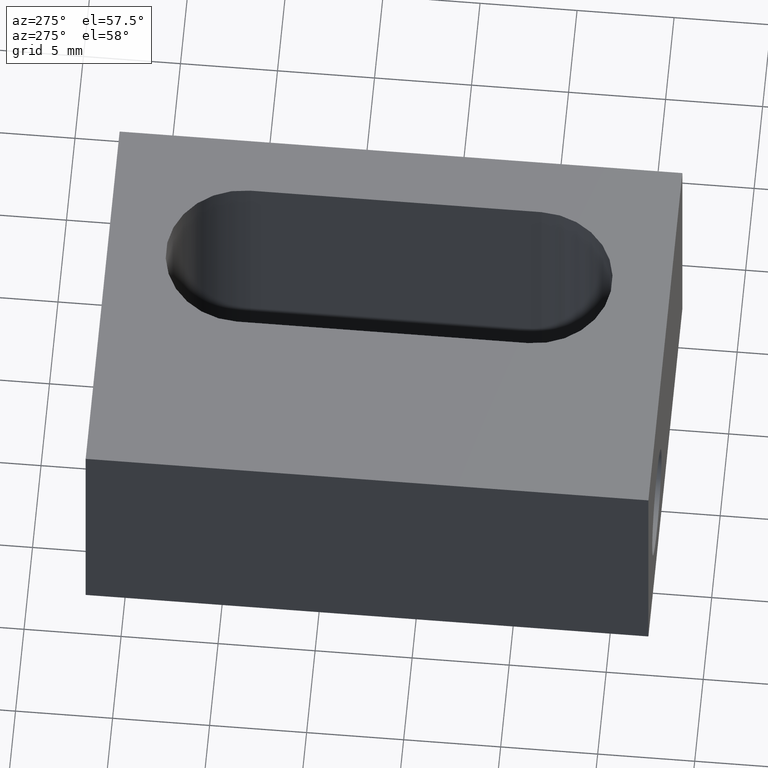
[diagram: clean part render]
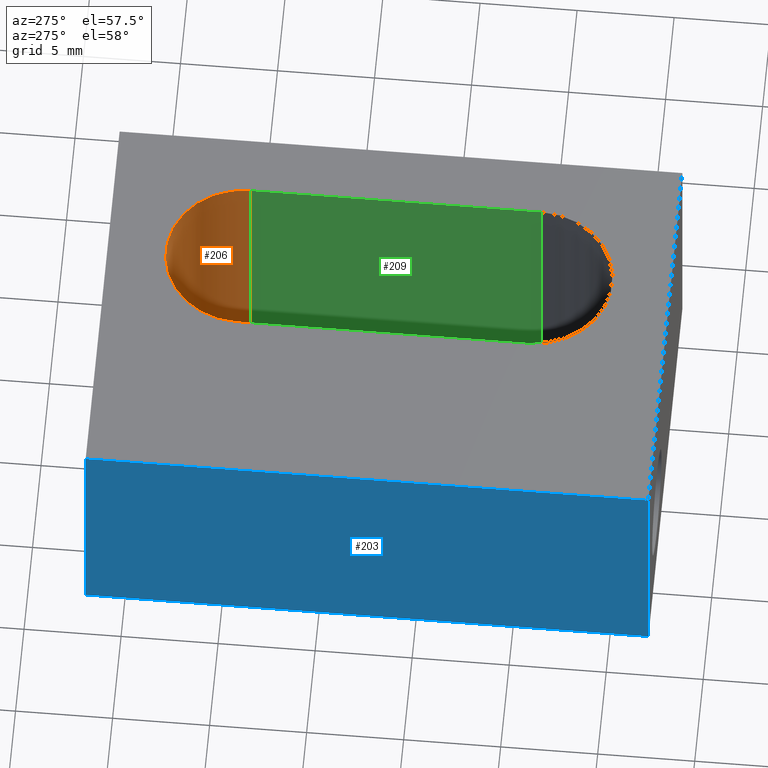
[diagram: same view with three faces highlighted in distinct colors, each labeled with its STEP entity id]
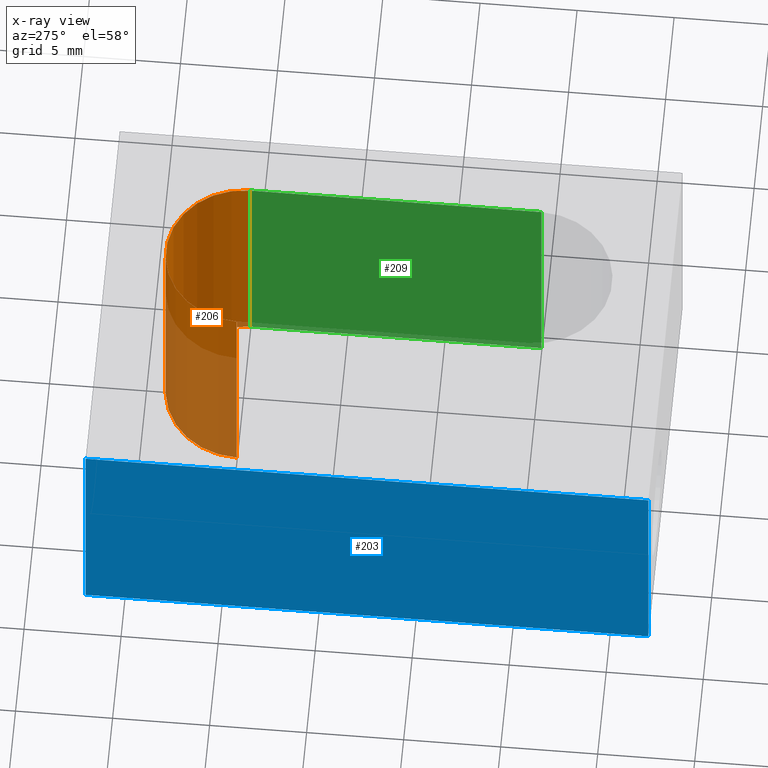
[diagram: x-ray of the same camera — body ghosted, the three highlighted faces saturated]
A machine part, auxiliary view with three faces highlighted in distinct colors.
The next image is the same camera in x-ray (body ghosted, the three faces saturated) — at least one of them is partly hidden behind the body in this view.
Their STEP definitions:

[orange] entity #206 — the highlighted cylindrical surface (partial cylindrical patch) has radius 4 mm, axis along (0, 0, 1).
#15=CYLINDRICAL_SURFACE('',#225,3.999999999984);
#25=CIRCLE('',#220,3.999999999984);
#28=CIRCLE('',#224,3.999999999984);
#35=FACE_OUTER_BOUND('',#50,.T.);
#50=EDGE_LOOP('',(#174,#175,#176,#177));
#72=LINE('',#334,#92);
#73=LINE('',#335,#93);
#92=VECTOR('',#274,13.);
#93=VECTOR('',#275,13.);
#106=VERTEX_POINT('',#316);
#107=VERTEX_POINT('',#317);
#110=VERTEX_POINT('',#325);
#113=VERTEX_POINT('',#330);
#128=EDGE_CURVE('',#106,#107,#25,.T.);
#135=EDGE_CURVE('',#113,#110,#28,.T.);
#136=EDGE_CURVE('',#107,#110,#72,.T.);
#137=EDGE_CURVE('',#106,#113,#73,.T.);
#174=ORIENTED_EDGE('',*,*,#136,.T.);
#175=ORIENTED_EDGE('',*,*,#135,.F.);
#176=ORIENTED_EDGE('',*,*,#137,.F.);
#177=ORIENTED_EDGE('',*,*,#128,.T.);
#206=ADVANCED_FACE('',(#35),#15,.F.);
#220=AXIS2_PLACEMENT_3D('',#318,#258,#259);
#224=AXIS2_PLACEMENT_3D('',#332,#270,#271);
#225=AXIS2_PLACEMENT_3D('',#333,#272,#273);
#258=DIRECTION('center_axis',(0.,0.,1.));
#259=DIRECTION('ref_axis',(1.,0.,0.));
#270=DIRECTION('center_axis',(0.,0.,1.));
#271=DIRECTION('ref_axis',(1.,0.,0.));
#272=DIRECTION('center_axis',(0.,0.,1.));
#273=DIRECTION('ref_axis',(1.,0.,0.));
#274=DIRECTION('',(0.,0.,-1.));
#275=DIRECTION('',(0.,0.,-1.));
#316=CARTESIAN_POINT('',(3.99999999998409,14.99999999994,13.));
#317=CARTESIAN_POINT('',(-3.99999999998409,14.99999999994,13.));
#318=CARTESIAN_POINT('Origin',(0.,14.99999999994,13.));
#325=CARTESIAN_POINT('',(-3.99999999998409,14.99999999994,0.));
#330=CARTESIAN_POINT('',(3.99999999998409,14.99999999994,0.));
#332=CARTESIAN_POINT('Origin',(0.,14.99999999994,0.));
#333=CARTESIAN_POINT('Origin',(0.,14.99999999994,13.));
#334=CARTESIAN_POINT('',(-3.99999999998409,14.99999999994,13.));
#335=CARTESIAN_POINT('',(3.99999999998409,14.99999999994,13.));

[blue] entity #203 — the highlighted planar face has unit normal (1, 0, 0).
#32=FACE_OUTER_BOUND('',#45,.T.);
#45=EDGE_LOOP('',(#154,#155,#156,#157));
#56=LINE('',#290,#76);
#64=LINE('',#308,#84);
#66=LINE('',#313,#86);
#67=LINE('',#314,#87);
#76=VECTOR('',#234,13.);
#84=VECTOR('',#248,13.);
#86=VECTOR('',#254,28.999999999884);
#87=VECTOR('',#255,28.999999999884);
#96=VERTEX_POINT('',#288);
#97=VERTEX_POINT('',#289);
#103=VERTEX_POINT('',#305);
#104=VERTEX_POINT('',#307);
#114=EDGE_CURVE('',#96,#97,#56,.T.);
#123=EDGE_CURVE('',#104,#103,#64,.T.);
#126=EDGE_CURVE('',#103,#97,#66,.T.);
#127=EDGE_CURVE('',#104,#96,#67,.T.);
#154=ORIENTED_EDGE('',*,*,#123,.T.);
#155=ORIENTED_EDGE('',*,*,#126,.T.);
#156=ORIENTED_EDGE('',*,*,#114,.F.);
#157=ORIENTED_EDGE('',*,*,#127,.F.);
#195=PLANE('',#218);
#203=ADVANCED_FACE('',(#32),#195,.F.);
#218=AXIS2_PLACEMENT_3D('',#312,#252,#253);
#234=DIRECTION('',(0.,0.,-1.));
#248=DIRECTION('',(0.,0.,-1.));
#252=DIRECTION('center_axis',(1.,0.,0.));
#253=DIRECTION('ref_axis',(0.,0.,-1.));
#254=DIRECTION('',(0.,-1.,0.));
#255=DIRECTION('',(0.,-1.,0.));
#288=CARTESIAN_POINT('',(-12.9999999999479,-6.99999999997226,13.));
#289=CARTESIAN_POINT('',(-12.9999999999479,-6.99999999997226,0.));
#290=CARTESIAN_POINT('',(-12.9999999999479,-6.99999999997226,13.));
#305=CARTESIAN_POINT('',(-12.9999999999479,21.9999999999118,0.));
#307=CARTESIAN_POINT('',(-12.9999999999479,21.9999999999118,13.));
#308=CARTESIAN_POINT('',(-12.9999999999479,21.9999999999118,13.));
#312=CARTESIAN_POINT('Origin',(-12.9999999999479,21.9999999999118,13.));
#313=CARTESIAN_POINT('',(-12.9999999999479,21.9999999999118,0.));
#314=CARTESIAN_POINT('',(-12.9999999999479,21.9999999999118,13.));

[green] entity #209 — the highlighted planar face has unit normal (-1, 0, 0).
#38=FACE_OUTER_BOUND('',#53,.T.);
#53=EDGE_LOOP('',(#186,#187,#188,#189));
#68=LINE('',#320,#88);
#71=LINE('',#331,#91);
#73=LINE('',#335,#93);
#75=LINE('',#339,#95);
#88=VECTOR('',#260,14.99999999994);
#91=VECTOR('',#269,14.99999999994);
#93=VECTOR('',#275,13.);
#95=VECTOR('',#281,13.);
#106=VERTEX_POINT('',#316);
#108=VERTEX_POINT('',#319);
#112=VERTEX_POINT('',#328);
#113=VERTEX_POINT('',#330);
#129=EDGE_CURVE('',#108,#106,#68,.T.);
#134=EDGE_CURVE('',#112,#113,#71,.T.);
#137=EDGE_CURVE('',#106,#113,#73,.T.);
#139=EDGE_CURVE('',#108,#112,#75,.T.);
#186=ORIENTED_EDGE('',*,*,#134,.F.);
#187=ORIENTED_EDGE('',*,*,#139,.F.);
#188=ORIENTED_EDGE('',*,*,#129,.T.);
#189=ORIENTED_EDGE('',*,*,#137,.T.);
#199=PLANE('',#228);
#209=ADVANCED_FACE('',(#38),#199,.T.);
#228=AXIS2_PLACEMENT_3D('',#340,#282,#283);
#260=DIRECTION('',(0.,1.,0.));
#269=DIRECTION('',(0.,1.,0.));
#275=DIRECTION('',(0.,0.,-1.));
#281=DIRECTION('',(0.,0.,-1.));
#282=DIRECTION('center_axis',(-1.,0.,0.));
#283=DIRECTION('ref_axis',(0.,0.,1.));
#316=CARTESIAN_POINT('',(3.99999999998409,14.99999999994,13.));
#319=CARTESIAN_POINT('',(3.99999999998386,0.,13.));
#320=CARTESIAN_POINT('',(3.99999999998386,0.,13.));
#328=CARTESIAN_POINT('',(3.99999999998386,0.,0.));
#330=CARTESIAN_POINT('',(3.99999999998409,14.99999999994,0.));
#331=CARTESIAN_POINT('',(3.99999999998386,0.,0.));
#335=CARTESIAN_POINT('',(3.99999999998409,14.99999999994,13.));
#339=CARTESIAN_POINT('',(3.99999999998386,0.,13.));
#340=CARTESIAN_POINT('Origin',(3.99999999998386,0.,13.));